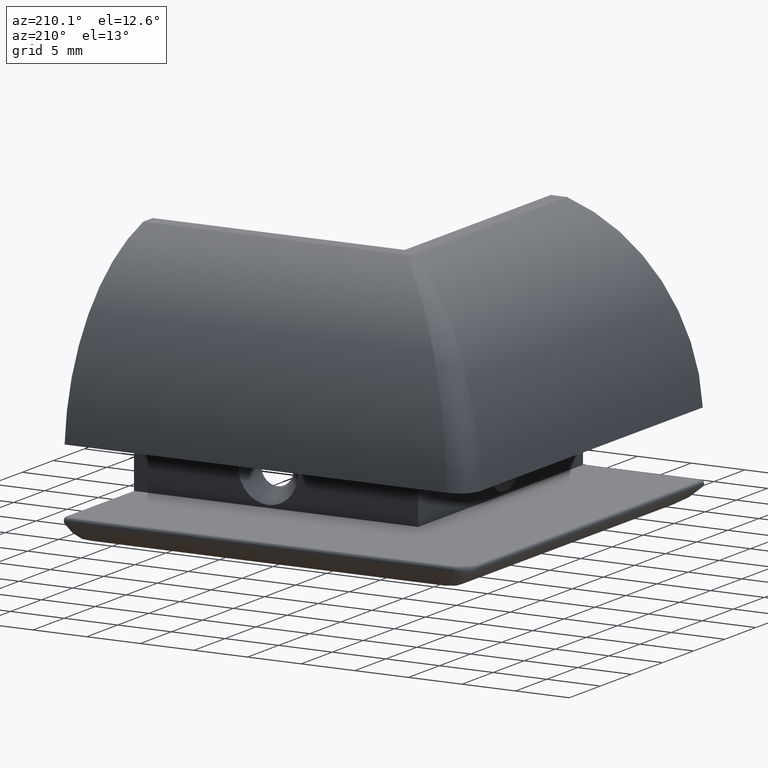
[diagram: clean part render]
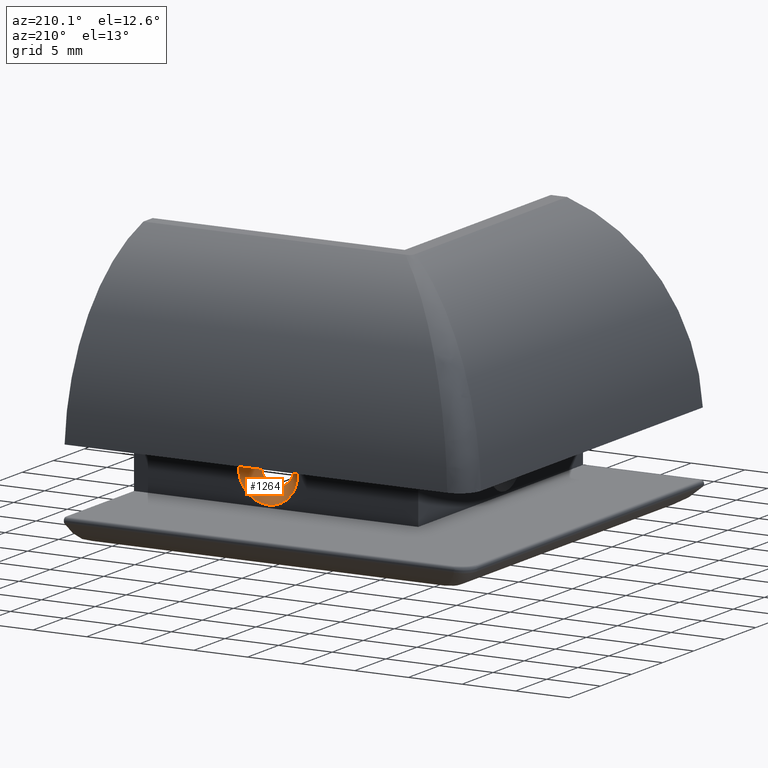
[diagram: same view with one face highlighted and labeled with its STEP entity id]
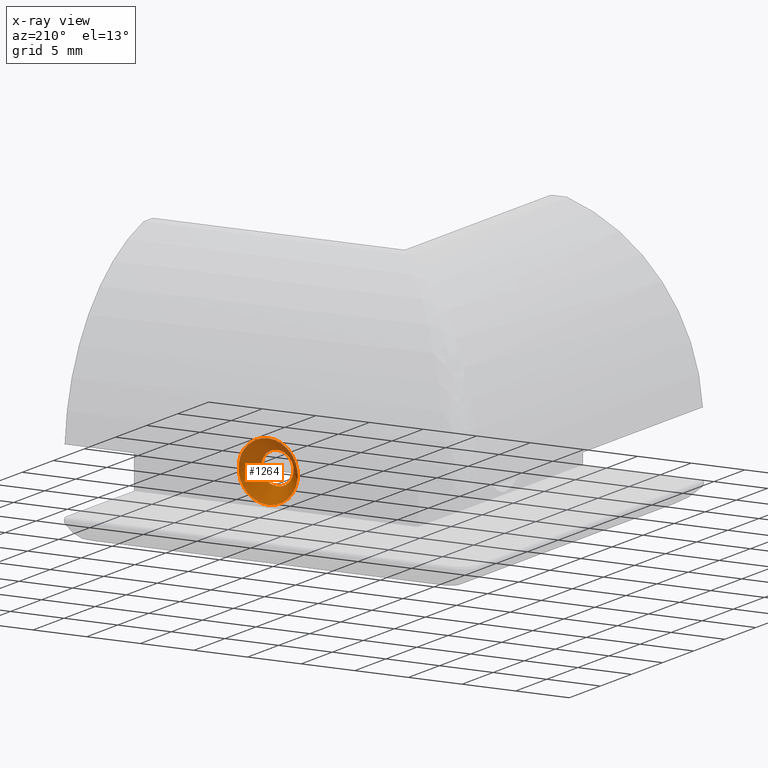
[diagram: x-ray of the same camera — body ghosted, the highlighted face saturated]
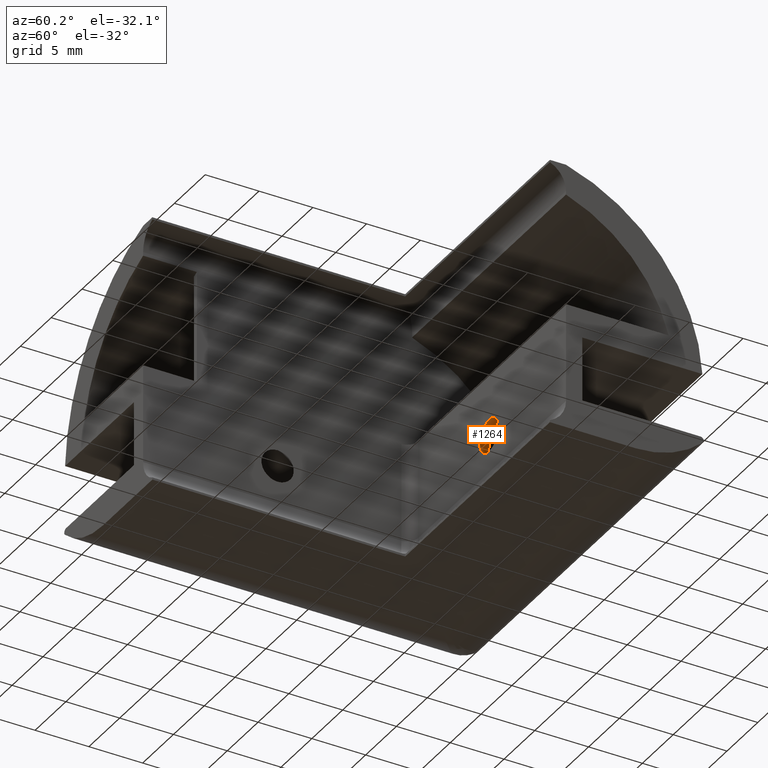
[diagram: same view with one face highlighted and labeled with its STEP entity id]
A machine part, auxiliary view. The second image highlights one B-rep face of the part: STEP entity #1264.
The next image is the same camera in x-ray: the body ghosted, the highlighted face saturated — about 41% of this face is hidden behind the body in this view.
A second angle (auxiliary view) of the same face is appended — the face is thin or edge-on in the first view.
In plain terms, the highlighted face is a freeform B-spline surface patch.
Its self-contained STEP definition (entity closure, byte-faithful):
#145=CARTESIAN_POINT('',(12.500000000000455,26.499998499999379,-2.941346111883605));
#146=VERTEX_POINT('',#145);
#147=CARTESIAN_POINT('',(12.500000000000455,26.499998499999379,-8.458642488116539));
#148=VERTEX_POINT('',#147);
#149=CARTESIAN_POINT('',(12.500000000000455,26.499998499999379,-5.699994300000071));
#150=DIRECTION('',(0.0,1.0,0.0));
#151=DIRECTION('',(0.0,0.0,-1.0));
#152=AXIS2_PLACEMENT_3D('',#149,#150,#151);
#153=CIRCLE('',#152,2.758648188116466);
#154=EDGE_CURVE('',#146,#148,#153,.T.);
#156=CARTESIAN_POINT('',(12.500000000000455,26.499998499999379,-5.699994300000071));
#157=DIRECTION('',(0.0,1.0,0.0));
#158=DIRECTION('',(0.0,0.0,-1.0));
#159=AXIS2_PLACEMENT_3D('',#156,#157,#158);
#160=CIRCLE('',#159,2.758648188116466);
#161=EDGE_CURVE('',#148,#146,#160,.T.);
#974=CARTESIAN_POINT('',(12.500000000000455,24.999999999999318,-7.199994299999844));
#975=VERTEX_POINT('',#974);
#976=CARTESIAN_POINT('',(12.500000000000455,24.999999999999318,-4.199994300000300));
#977=VERTEX_POINT('',#976);
#978=CARTESIAN_POINT('',(12.500000000000455,24.999999999999318,-5.699994300000071));
#979=DIRECTION('',(0.0,1.0,0.0));
#980=DIRECTION('',(0.0,0.0,-1.0));
#981=AXIS2_PLACEMENT_3D('',#978,#979,#980);
#982=CIRCLE('',#981,1.499999999999772);
#983=EDGE_CURVE('',#975,#977,#982,.T.);
#985=CARTESIAN_POINT('',(12.500000000000455,24.999999999999318,-5.699994300000071));
#986=DIRECTION('',(0.0,1.0,0.0));
#987=DIRECTION('',(0.0,0.0,-1.0));
#988=AXIS2_PLACEMENT_3D('',#985,#986,#987);
#989=CIRCLE('',#988,1.499999999999772);
#990=EDGE_CURVE('',#977,#975,#989,.T.);
#1225=CARTESIAN_POINT('',(12.500000000000455,24.999999999999318,-7.199994299999844));
#1226=CARTESIAN_POINT('',(11.000000000000682,24.999999999999314,-7.199994299999844));
#1227=CARTESIAN_POINT('',(11.000000000000682,24.999999999999318,-5.699994300000072));
#1228=CARTESIAN_POINT('',(11.000000000000682,24.999999999999314,-4.199994300000300));
#1229=CARTESIAN_POINT('',(12.500000000000455,24.999999999999318,-4.199994300000300));
#1230=CARTESIAN_POINT('',(14.000000000000227,24.999999999999314,-4.199994300000300));
#1231=CARTESIAN_POINT('',(14.000000000000227,24.999999999999318,-5.699994300000072));
#1232=CARTESIAN_POINT('',(14.000000000000227,24.999999999999314,-7.199994299999844));
#1233=CARTESIAN_POINT('',(12.500000000000455,24.999999999999318,-7.199994299999844));
#1234=CARTESIAN_POINT('',(12.500000000000455,26.499998499999379,-8.458642488116539));
#1235=CARTESIAN_POINT('',(9.741351811883988,26.499998499999379,-8.458642488116539));
#1236=CARTESIAN_POINT('',(9.741351811883988,26.499998499999379,-5.699994300000072));
#1237=CARTESIAN_POINT('',(9.741351811883988,26.499998499999379,-2.941346111883606));
#1238=CARTESIAN_POINT('',(12.500000000000455,26.499998499999379,-2.941346111883606));
#1239=CARTESIAN_POINT('',(15.258648188116920,26.499998499999379,-2.941346111883606));
#1240=CARTESIAN_POINT('',(15.258648188116922,26.499998499999379,-5.699994300000072));
#1241=CARTESIAN_POINT('',(15.258648188116920,26.499998499999379,-8.458642488116539));
#1242=CARTESIAN_POINT('',(12.500000000000455,26.499998499999379,-8.458642488116539));
#1250=(BOUNDED_SURFACE()B_SPLINE_SURFACE(2,1,((#1225,#1234),(#1226,#1235),(#1227,#1236),(#1228,#1237),(#1229,#1238),(#1230,#1239),(#1231,#1240),(#1232,#1241),(#1233,#1242)),.UNSPECIFIED.,.T.,.F.,.U.)B_SPLINE_SURFACE_WITH_KNOTS((3,2,2,2,3),(2,2),(0.0,0.250000000000000,0.500000000000000,0.750000000000000,1.0),(-1.958108975887673,0.0),.UNSPECIFIED.)GEOMETRIC_REPRESENTATION_ITEM()RATIONAL_B_SPLINE_SURFACE(((1.0,1.0),(0.707106781186548,0.707106781186548),(1.0,1.0),(0.707106781186548,0.707106781186548),(1.0,1.0),(0.707106781186548,0.707106781186548),(1.0,1.0),(0.707106781186548,0.707106781186548),(1.0,1.0)))REPRESENTATION_ITEM('')SURFACE());
#1251=CARTESIAN_POINT('',(12.500000000000455,24.999999999999318,-7.199994299999844));
#1252=DIRECTION('',(0.0,0.766044443118935,-0.642787609686590));
#1253=VECTOR('',#1252,1.958108975887673);
#1254=LINE('',#1251,#1253);
#1255=EDGE_CURVE('',#975,#148,#1254,.T.);
#1256=ORIENTED_EDGE('',*,*,#1255,.T.);
#1257=ORIENTED_EDGE('',*,*,#161,.T.);
#1258=ORIENTED_EDGE('',*,*,#154,.T.);
#1259=ORIENTED_EDGE('',*,*,#1255,.F.);
#1260=ORIENTED_EDGE('',*,*,#990,.F.);
#1261=ORIENTED_EDGE('',*,*,#983,.F.);
#1262=EDGE_LOOP('',(#1256,#1257,#1258,#1259,#1260,#1261));
#1263=FACE_OUTER_BOUND('',#1262,.T.);
#1264=ADVANCED_FACE('',(#1263),#1250,.F.);